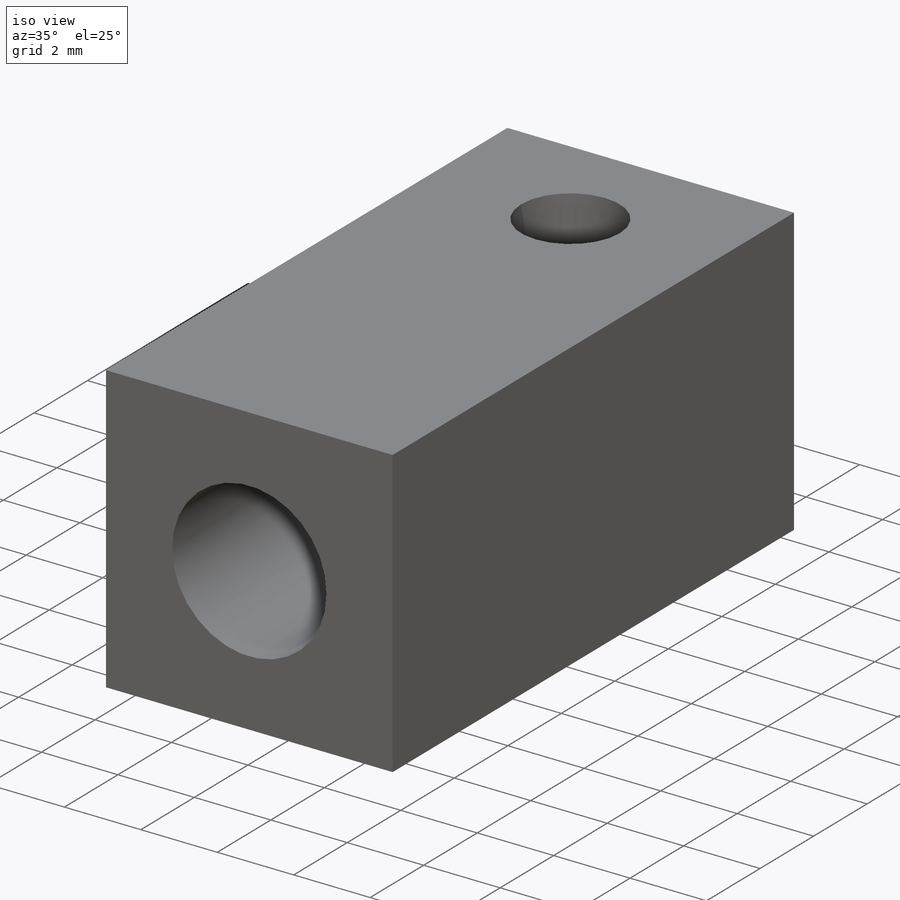
[diagram: iso view]
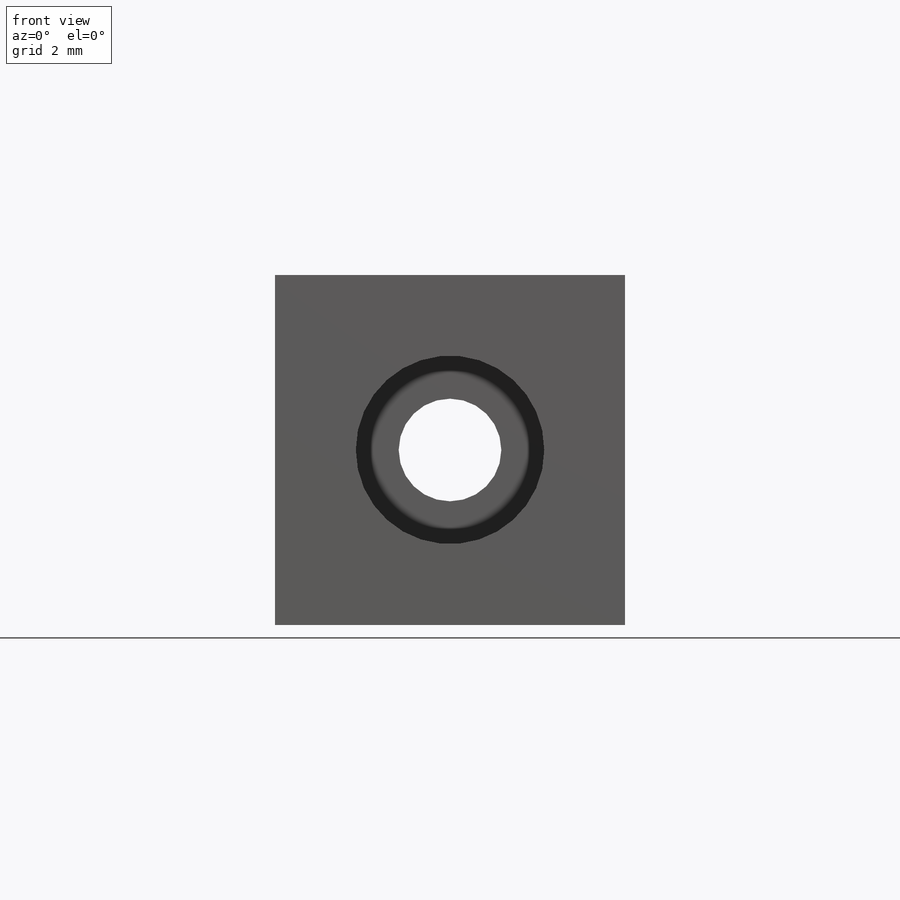
[diagram: front view]
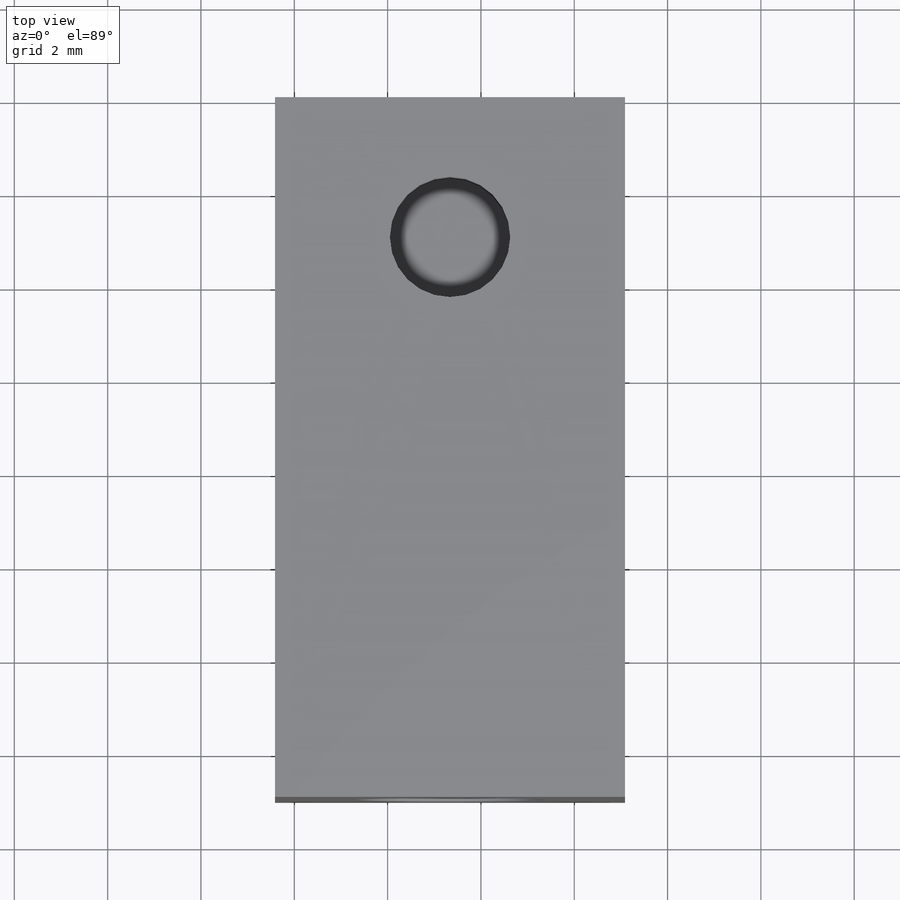
[diagram: top view]
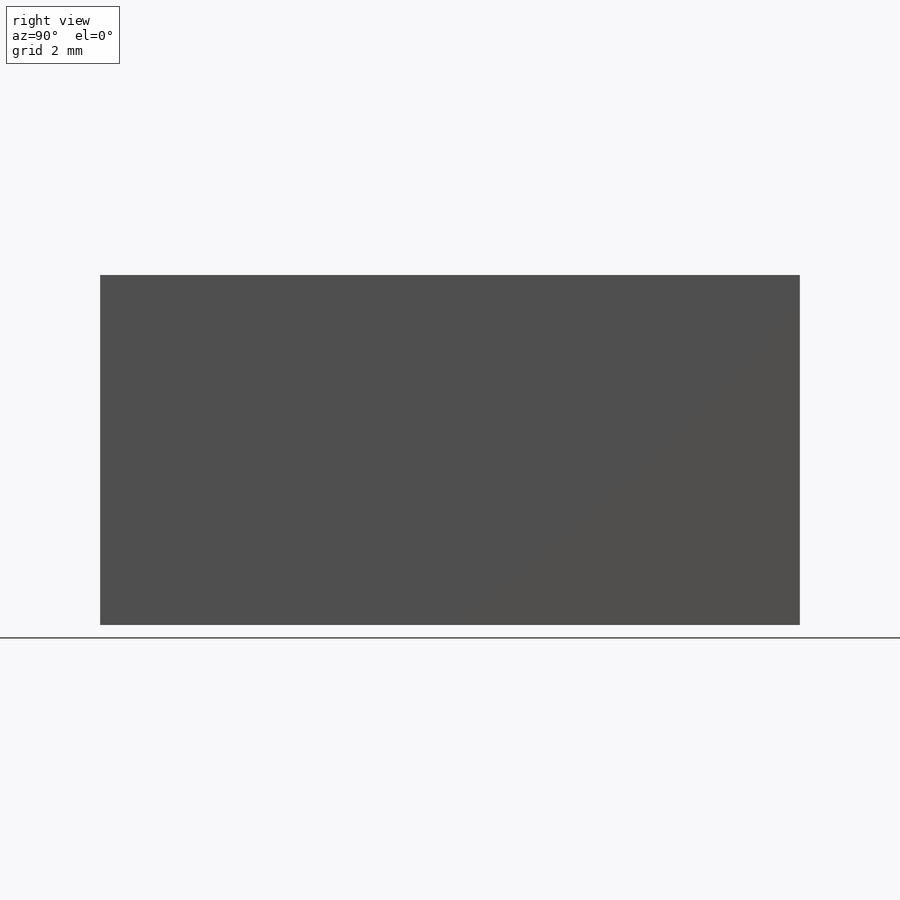
[diagram: right view]
SOLIDWORKS PART (.sldprt)
format: sldprt  version: not decoded by parser v0  size: 187,904 bytes
history: native  units: mm
features: sketch x5, cut_extrude x4, material x1, extrude x1 (+13 scaffold rows collapsed)
feature tree (24):
  scaffold x13  (default folders/planes/origin — collapsed)
  material  "Material <not specified>"
  sketch  "Sketch1"  dims[c1.D1=~27.333523mm c1.D2=~19.014624mm c2.D1=7.5mm]
  extrude  "Boss-Extrude1"  Depth=15mm
  sketch  "10-32 hole for luer screw"  dims[D1=~7.071068mm]
  sketch  "hole for tubing"  dims[D1=~2.802816mm]
  cut_extrude  "Cut-Extrude1"  [1 undecoded]
  cut_extrude  "Cut-Extrude2"  Depth=7.5mm
  sketch  "5-40 set screw hole"  dims[D2=2.5781mm D1=6.0mm]
  cut_extrude  "Cut-Extrude3"  Depth=2mm
  sketch  "Sketch2"  dims[c1.D1=~4.074008mm c1.D2=~4.290288mm c2.D1=5.5mm c2.D2=~8.186758mm c2.D3=~7.037685mm]
  cut_extrude  "Cut-Extrude4"  Depth=5mm
decode coverage: 9 of 10 modeling features carry decoded parameters
note: ~ marks probable driven/reference dimensions
note: 1 parameter value undecoded
note: suppression state not decoded; provenance and decode notes live in map.json
